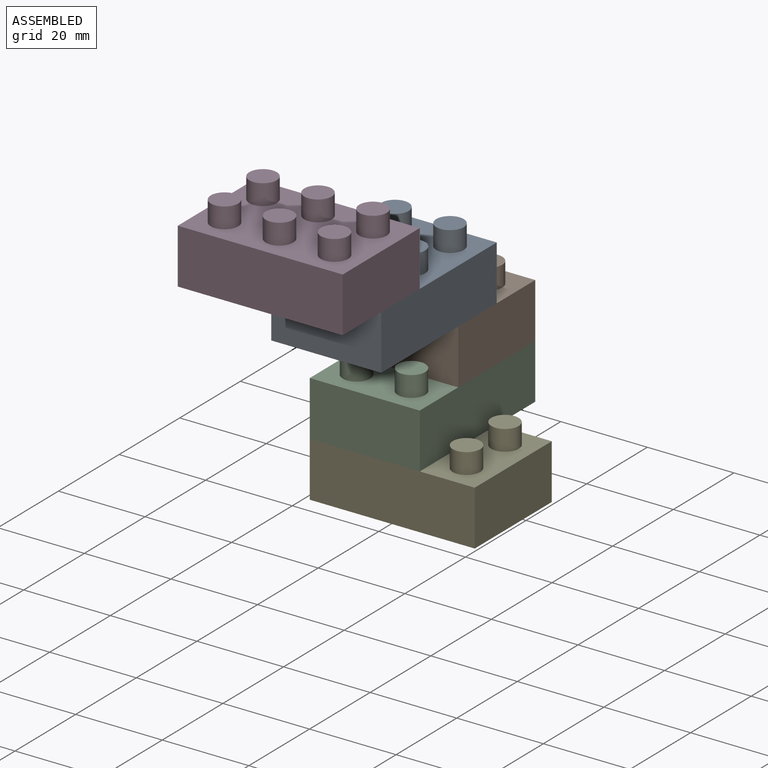
[diagram: assembled view]
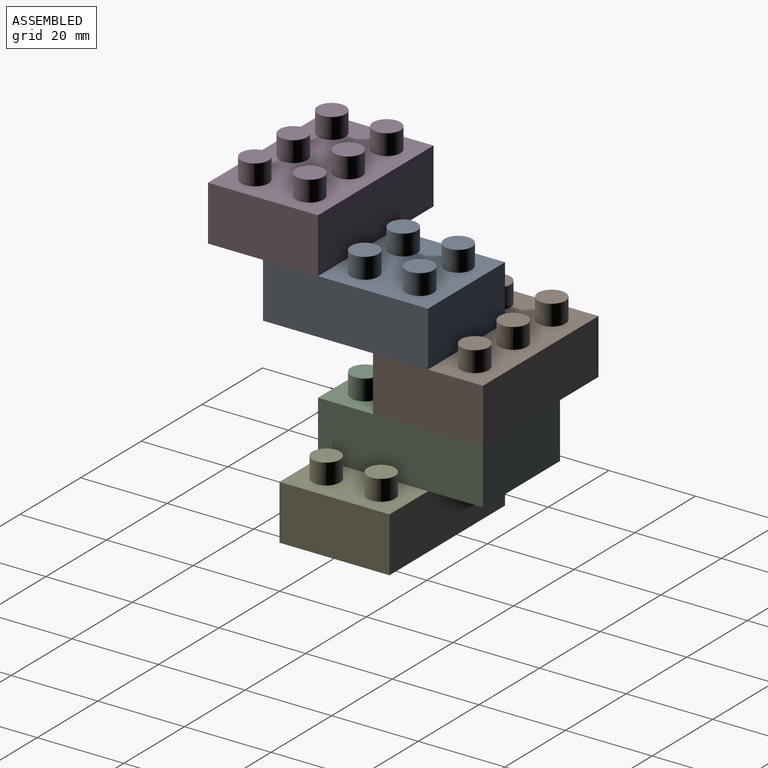
[diagram: assembled view, second angle]
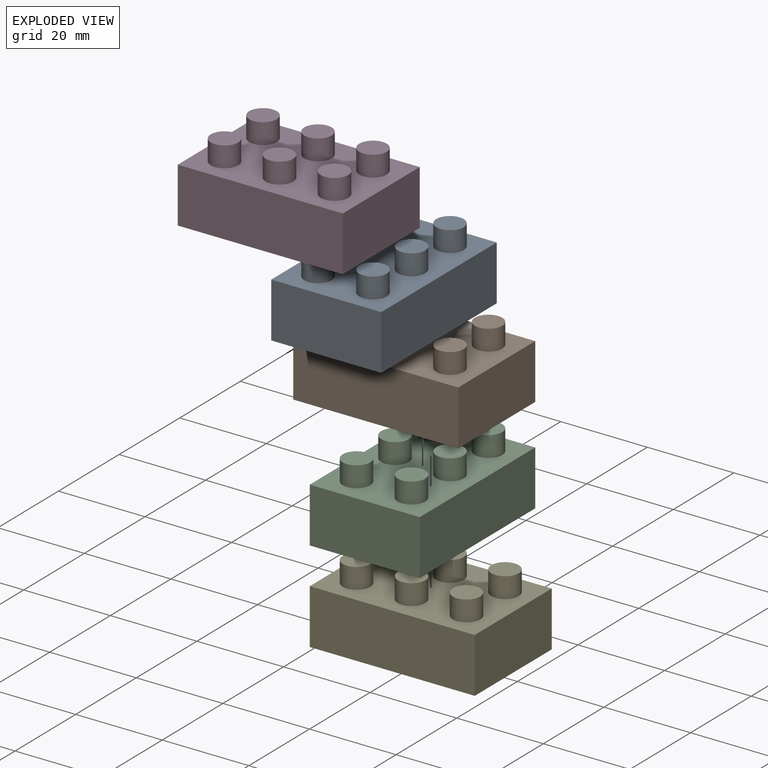
[diagram: exploded view]
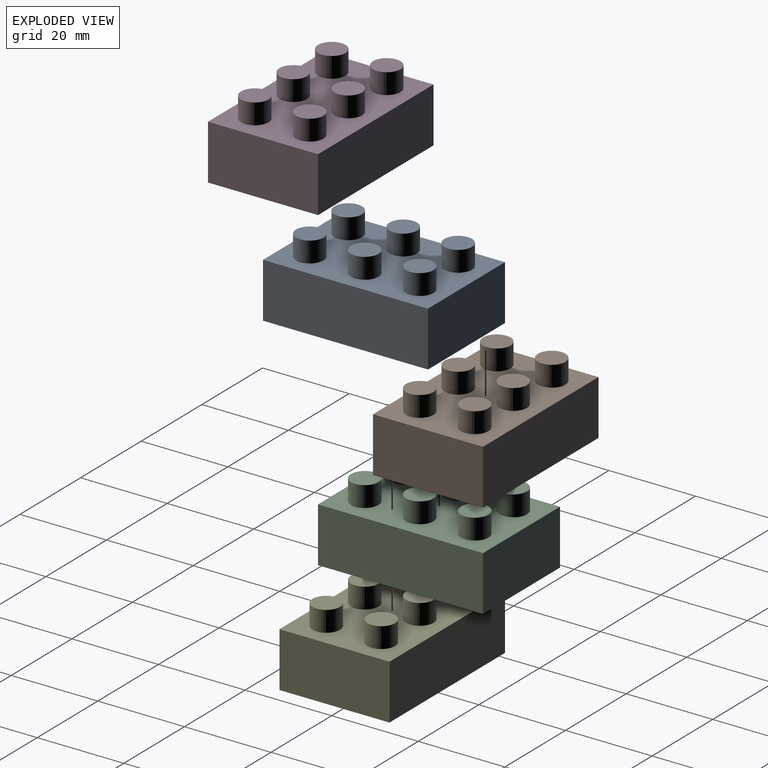
[diagram: exploded view, second angle]
ASSEMBLY  parts=5 mates=4
PART A: 30 faces, bbox 38.1x25.4x17.5 mm
  f0: cylinder r=3.17mm len=7.94mm, axis (0,0,1), area 158.3mm2, adj f10,f29
  f1: cylinder r=3.17mm len=7.94mm, axis (0,0,1), area 158.3mm2, adj f10,f26
  f2: cylinder r=3.17mm len=7.94mm, axis (0,0,1), area 158.3mm2, adj f10,f23
  f3: cylinder r=3.17mm len=7.94mm, axis (0,0,1), area 158.3mm2, adj f10,f20
  f4: cylinder r=3.17mm len=7.94mm, axis (0,0,1), area 158.3mm2, adj f10,f17
  f5: cylinder r=3.17mm len=7.94mm, axis (0,0,1), area 158.3mm2, adj f10,f14
  f6: plane 38.1x12.7mm, normal (0,-1,0), area 483.9mm2, adj f7,f9,f10,f11
  f7: plane 25.4x12.7mm, normal (1,0,0), area 322.6mm2, adj f6,f8,f10,f11
  f8: plane 38.1x12.7mm, normal (0,1,0), area 483.9mm2, adj f7,f9,f10,f11
  f9: plane 25.4x12.7mm, normal (-1,0,0), area 322.6mm2, adj f6,f8,f10,f11
  f10: plane 38.1x25.4mm, normal (0,0,-1), area 777.7mm2, adj f0,f1,f2,f3,f4,f5,f6,f7
  f11: plane 38.1x25.4mm, normal (0,0,1), area 777.7mm2, adj f6,f7,f8,f9,f13,f16,f19,f22
  f12: plane 6.35x6.35mm, normal (0,0,1), area 31.7mm2, adj f13
  f13: cylinder r=3.17mm len=6.35mm, axis (0,0,-1), area 95mm2, adj f11,f12
  f14: plane 6.35x6.35mm, normal (0,0,-1), area 31.7mm2, adj f5
  f15: plane 6.35x6.35mm, normal (0,0,1), area 31.7mm2, adj f16
  f16: cylinder r=3.17mm len=6.35mm, axis (0,0,-1), area 95mm2, adj f11,f15
  f17: plane 6.35x6.35mm, normal (0,0,-1), area 31.7mm2, adj f4
  f18: plane 6.35x6.35mm, normal (0,0,1), area 31.7mm2, adj f19
  f19: cylinder r=3.17mm len=6.35mm, axis (0,0,-1), area 95mm2, adj f11,f18
  f20: plane 6.35x6.35mm, normal (0,0,-1), area 31.7mm2, adj f3
  f21: plane 6.35x6.35mm, normal (0,0,1), area 31.7mm2, adj f22
  f22: cylinder r=3.17mm len=6.35mm, axis (0,0,-1), area 95mm2, adj f11,f21
  f23: plane 6.35x6.35mm, normal (0,0,-1), area 31.7mm2, adj f2
  f24: plane 6.35x6.35mm, normal (0,0,1), area 31.7mm2, adj f25
  f25: cylinder r=3.17mm len=6.35mm, axis (0,0,-1), area 95mm2, adj f11,f24
  f26: plane 6.35x6.35mm, normal (0,0,-1), area 31.7mm2, adj f1
  f27: plane 6.35x6.35mm, normal (0,0,1), area 31.7mm2, adj f28
  f28: cylinder r=3.17mm len=6.35mm, axis (0,0,-1), area 95mm2, adj f11,f27
  f29: plane 6.35x6.35mm, normal (0,0,-1), area 31.7mm2, adj f0
PART B: same geometry as A
PART C: same geometry as A
PART D: same geometry as A
PART E: same geometry as A
PLACE A rot(axis=(0,0,1),90deg) t=(-6.35,-6.35,50.8)mm
PLACE B t=(-12.7,12.7,38.1)mm
PLACE C rot(axis=(0,0,1),90deg) t=(-6.35,6.35,25.4)mm
PLACE D t=(-12.7,-25.4,63.5)mm
PLACE E t=(0,0,12.7)mm fixed
MATE fastened A.f3 <-> B.f4  axis (0,0,-1) through (-12.7,6.35,38.1)mm
MATE fastened C.f5 <-> B.f4  axis (0,0,1) through (-12.7,6.35,25.4)mm
MATE fastened D.f5 <-> A.f1  axis (0,0,-1) through (-12.7,-19.05,50.8)mm
MATE fastened C.f0 <-> E.f4  axis (0,0,-1) through (0,-6.35,12.7)mm
